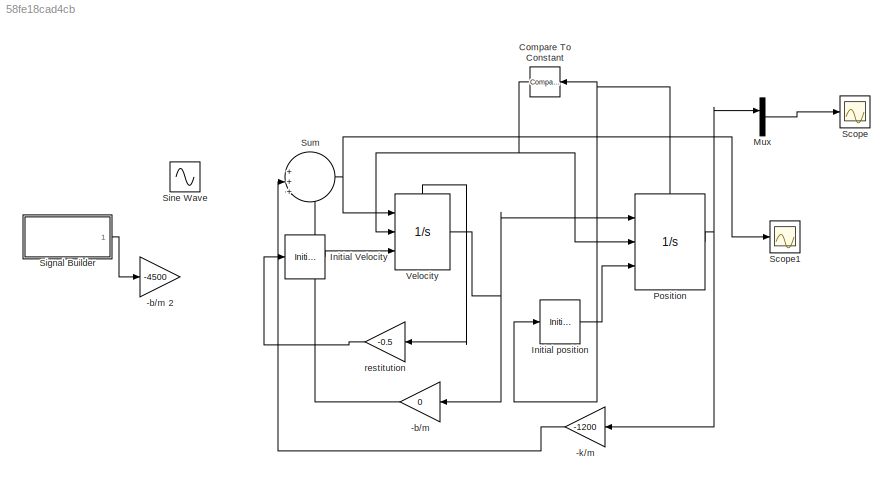
MODEL slx_58fe18cad4cb
KIND model
BLOCK [Gain] -b//m 
  Gain = 0
  OutDataTypeStr = Inherit: Inherit via internal rule
  ParamDataTypeStr = Inherit: Inherit via internal rule
  SaturateOnIntegerOverflow = off
BLOCK [Gain] -b//m 2
  Gain = -4500
  OutDataTypeStr = Inherit: Inherit via internal rule
  ParamDataTypeStr = Inherit: Inherit via internal rule
  SaturateOnIntegerOverflow = off
BLOCK [Gain] -k//m 
  Gain = -1200
  OutDataTypeStr = Inherit: Inherit via internal rule
  ParamDataTypeStr = Inherit: Inherit via internal rule
  SaturateOnIntegerOverflow = off
BLOCK [Reference] Compare To Constant  REF=simulink/Logic and Bit
Operations/Compare
To Constant
  OutDataTypeStr = boolean
  Ports = [1, 1]
  SourceBlock = simulink/Logic and Bit\nOperations/Compare\nTo Constant
  SourceType = Compare To Constant
  ZeroCross = on
  const = -1
  relop = <=
BLOCK [InitialCondition] Initial Velocity 
  Value = 0
BLOCK [InitialCondition] Initial position 
  Value = 4
BLOCK [Mux] Mux
  DisplayOption = bar
  Inputs = 2
  Ports = [2, 1]
BLOCK [Integrator] Position 
  ExternalReset = rising
  InitialConditionSource = external
  LimitOutput = on
  LowerSaturationLimit = -2.0
  Ports = [3, 1, 0, 0, 1]
  ShowStatePort = on
  UpperSaturationLimit = 200
BLOCK [Scope] Scope
  DataFormat = StructureWithTime
  Floating = off
  NumInputPorts = 1
  Ports = [1]
  SampleTime = 0
  ShowLegends = off
  TimeRange = 0.1287001287001287
  YMax = 0.1249999999999998
  YMin = -0.9436274509803924
BLOCK [Scope] Scope1
  DataFormat = StructureWithTime
  Floating = off
  NumInputPorts = 1
  Ports = [1]
  SampleTime = 0
  SaveName = ScopeData1
  ShowLegends = off
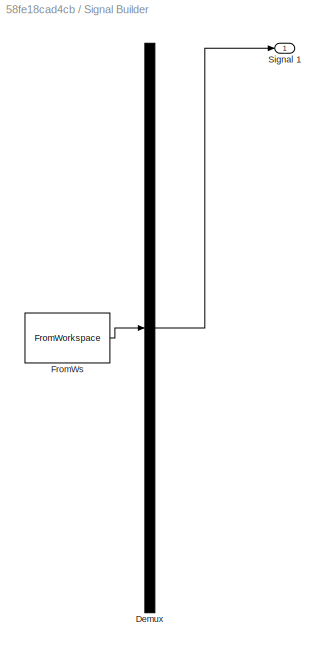
BLOCK [SubSystem] Signal Builder
  ClipboardFcn = sigbuilder_block('clipboard');
  CloseFcn = sigbuilder_block('close');
  ContinueFcn = sigbuilder_block('continue');
  CopyFcn = sigbuilder_block('copy');
  DeleteFcn = sigbuilder_block('delete');
  FunctionWithSeparateData = off
  LoadFcn = sigbuilder_block('load');
  MaskHideContents = on
  MinAlgLoopOccurrences = off
  ModelCloseFcn = sigbuilder_block('modelClose');
  NameChangeFcn = sigbuilder_block('namechange');
  Opaque = off
  OpenFcn = sigbuilder_block('open',[436.656 202.84 549.567 399.685 ]);
  PauseFcn = sigbuilder_block('pause');
  Ports = [0, 1]
  PreSaveFcn = sigbuilder_block('preSave');
  PropExecContextOutsideSubsystem = off
  RTWSystemCode = Auto
  RequestExecContextInheritance = off
  StartFcn = sigbuilder_block('start');
  StopFcn = sigbuilder_block('stop');
  Tag = STV Subsys
BLOCK [Demux] Signal Builder/Demux
  Outputs = 1
  Ports = [1, 1]
  Tag = STV Demux
BLOCK [FromWorkspace] Signal Builder/FromWs
  SampleTime = 0
  Tag = STV FromWs
  VariableName = tuvar
  ZeroCross = on
BLOCK [Outport] Signal Builder/Signal 1
  IconDisplay = Port number
  Tag = STV Outport
BLOCK [Sin] Sine Wave
  Amplitude = 1500
  Ports = [0, 1]
  SampleTime = 0
BLOCK [Sum] Sum
  IconShape = round
  InputSameDT = off
  Inputs = |++++
  OutDataTypeStr = Inherit: Inherit via internal rule
  Ports = [4, 1]
  SaturateOnIntegerOverflow = off
BLOCK [Integrator] Velocity 
  ExternalReset = rising
  InitialConditionSource = external
  LimitOutput = on
  LowerSaturationLimit = -200
  Ports = [3, 1, 0, 0, 1]
  ShowStatePort = on
  UpperSaturationLimit = 200
BLOCK [Gain] restitution 
  Gain = -0.5
  OutDataTypeStr = Inherit: Inherit via internal rule
  ParamDataTypeStr = Inherit: Inherit via internal rule
  SaturateOnIntegerOverflow = off
LINE -b//m :1 -> Sum:4
LINE -k//m :1 -> Sum:3
NET Compare To Constant:1 -> Position :2, Velocity :2
LINE Initial Velocity :1 -> Velocity :3
LINE Initial position :1 -> Position :3
LINE Mux:1 -> Scope:1
NET Position :1 -> -k//m :1, Mux:1
NET Position :state -> Compare To Constant:1, Initial position :1
LINE Signal Builder:1 -> -b//m 2:1
NET Sum:1 -> Scope1:1, Velocity :1
NET Velocity :1 -> -b//m :1, Position :1
LINE Velocity :state -> restitution :1
LINE restitution :1 -> Initial Velocity :1
note: NET lines group one-source signal fan-out (src -> all destinations, sorted); 1:1 wires keep LINE
